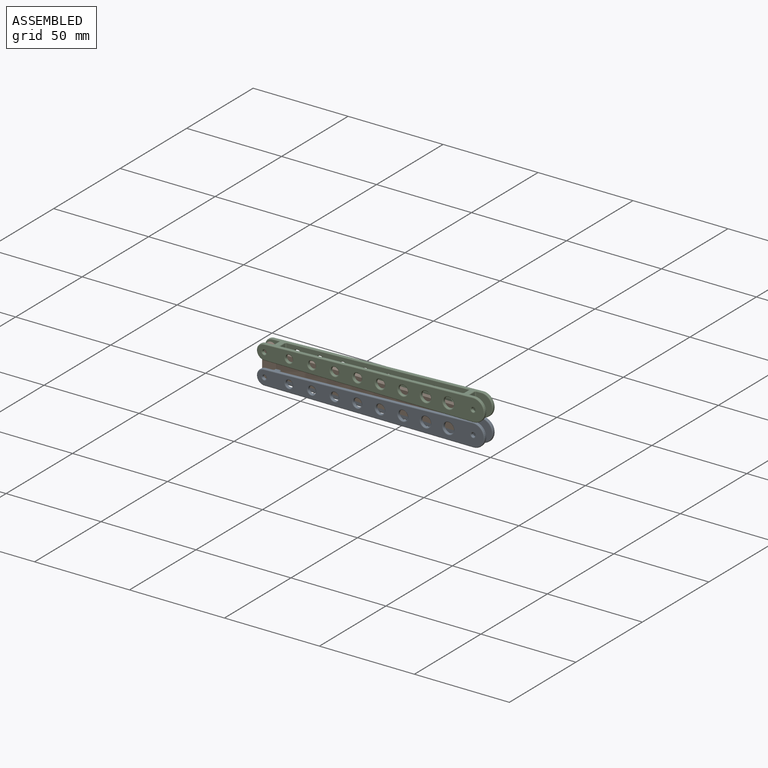
[diagram: assembled view]
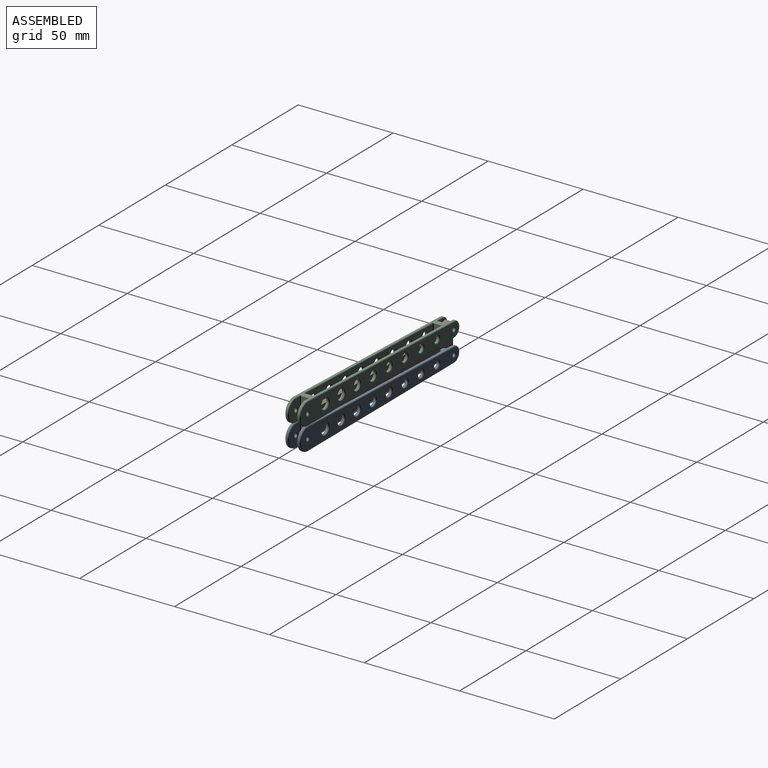
[diagram: assembled view, second angle]
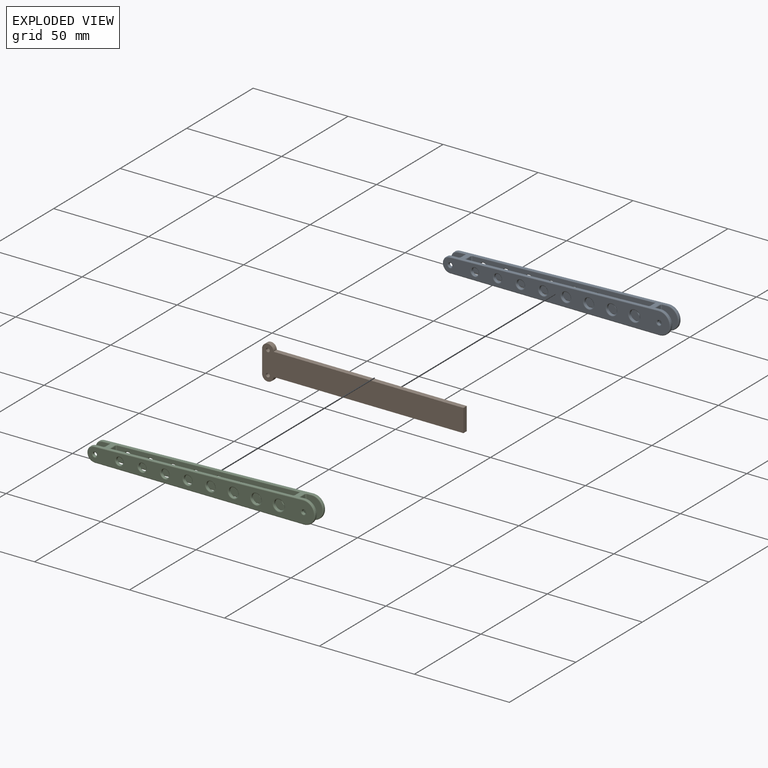
[diagram: exploded view]
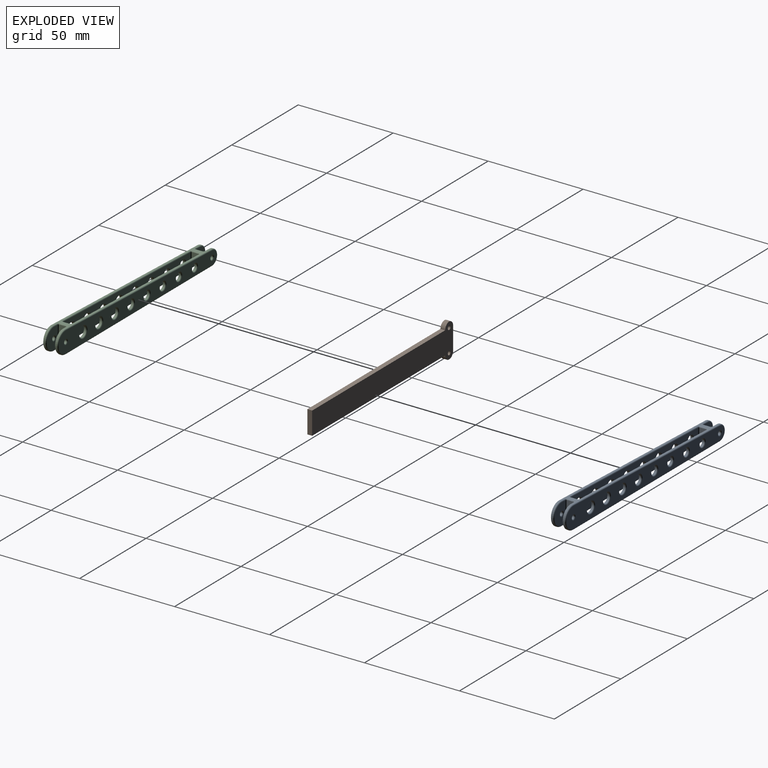
[diagram: exploded view, second angle]
ASSEMBLY  parts=3 mates=2
PART A: 131 faces, bbox 121.5x8.7x13.7 mm
  f0: plane 3.5x3.17mm, normal (1,0,-0.02), area 11.1mm2, adj f4,f5,f75,f130
  f1: plane 3.5x3.08mm, normal (-1,0,0.02), area 10.8mm2, adj f2,f3,f58,f130
  f2: cylinder r=0.5mm len=3.09mm, axis (-0.02,0,-1), area 2.4mm2, adj f1,f35,f59,f130
  f3: cylinder r=0.5mm len=3.09mm, axis (0.02,0,1), area 2.4mm2, adj f1,f36,f62,f130
  f4: cylinder r=0.5mm len=3.21mm, axis (-0.02,0,-1), area 2.5mm2, adj f0,f35,f71,f130
  f5: cylinder r=0.5mm len=3.21mm, axis (0.02,0,1), area 2.5mm2, adj f0,f36,f80,f130
  f6: cylinder r=6mm len=12mm, axis (0,1,0), area 14.3mm2, adj f7,f19,f42,f126
  f7: plane 110.33x7.35mm, normal (0,0,1), area 179.6mm2, adj f6,f8,f20,f21,f35,f36,f45,f47
  f8: cylinder r=4mm len=8mm, axis (0,1,0), area 9.3mm2, adj f7,f19,f60,f115
  f9: cylinder r=1.88mm len=3.75mm, axis (0,1,0), area 8.8mm2, adj f94,f111
  f10: cylinder r=2mm len=4mm, axis (0,1,0), area 9.4mm2, adj f95,f110
  f11: cylinder r=2.12mm len=4.25mm, axis (0,1,0), area 10mm2, adj f96,f109
  f12: cylinder r=2.25mm len=4.5mm, axis (0,1,0), area 10.6mm2, adj f97,f108
  f13: cylinder r=2.38mm len=4.75mm, axis (0,1,0), area 11.2mm2, adj f98,f107
  f14: cylinder r=2.5mm len=5mm, axis (0,1,0), area 11.8mm2, adj f99,f106
  f15: cylinder r=2.62mm len=5.25mm, axis (0,1,0), area 12.4mm2, adj f100,f105
  f16: cylinder r=2.75mm len=5.5mm, axis (0,1,0), area 13mm2, adj f101,f104
  f17: cylinder r=1mm len=2mm, axis (0,1,0), area 4.7mm2, adj f67,f103
  f18: cylinder r=1mm len=2mm, axis (0,1,0), area 4.7mm2, adj f55,f116
  f19: plane 110.61x7.7mm, normal (-0.04,0,-1), area 188.7mm2, adj f6,f8,f20,f21,f41,f43,f46,f48
  f20: cylinder r=6mm len=12mm, axis (0,1,0), area 14.3mm2, adj f7,f19,f53,f112
  f21: cylinder r=4mm len=8mm, axis (0,1,0), area 9.3mm2, adj f7,f19,f61,f129
  f22: cylinder r=1.88mm len=3.75mm, axis (0,1,0), area 8.8mm2, adj f86,f125
  f23: cylinder r=2mm len=4mm, axis (0,1,0), area 9.4mm2, adj f87,f124
  f24: cylinder r=2.12mm len=4.25mm, axis (0,1,0), area 10mm2, adj f88,f123
  f25: cylinder r=2.25mm len=4.5mm, axis (0,1,0), area 10.6mm2, adj f89,f122
  f26: cylinder r=2.38mm len=4.75mm, axis (0,1,0), area 11.2mm2, adj f90,f121
  f27: cylinder r=2.5mm len=5mm, axis (0,1,0), area 11.8mm2, adj f91,f120
  f28: cylinder r=2.62mm len=5.25mm, axis (0,1,0), area 12.4mm2, adj f92,f119
  f29: cylinder r=2.75mm len=5.5mm, axis (0,1,0), area 13mm2, adj f93,f118
  f30: cylinder r=1mm len=2mm, axis (0,1,0), area 4.7mm2, adj f68,f117
  f31: cylinder r=1mm len=2mm, axis (0,1,0), area 4.7mm2, adj f40,f102
  f32: plane 118.98x11mm, normal (0,-1,0), area 841.9mm2, adj f116,f117,f118,f119,f120,f121,f122,f123
  f33: plane 118.98x11mm, normal (0,1,0), area 841.9mm2, adj f102,f103,f104,f105,f106,f107,f108,f109
  f34: plane 10.8x3.5mm, normal (-1,0,0.02), area 37.8mm2, adj f72,f73,f81,f82
  f35: plane 107.16x11.45mm, normal (0,-1,0), area 718.7mm2, adj f2,f4,f7,f56,f60,f63,f65,f67
  f36: plane 107.33x11.62mm, normal (0,1,0), area 718.7mm2, adj f3,f5,f7,f57,f61,f64,f66,f68
  f37: plane 11x8.21mm, normal (0,-1,0), area 69mm2, adj f40,f49,f51,f53,f54
  f38: plane 10.87x3.5mm, normal (1,0,-0.02), area 38mm2, adj f44,f46,f49,f50
  f39: plane 11x8.21mm, normal (0,1,0), area 69mm2, adj f41,f42,f44,f45,f55
  f40: torus R=1.5mm, axis (0,1,0), area 5.8mm2, adj f31,f37
  f41: cylinder r=0.5mm len=2.53mm, axis (1,0,-0.04), area 2mm2, adj f19,f39,f42,f43
  f42: torus R=5.5mm, axis (0,1,0), area 14.5mm2, adj f6,f39,f41,f45
  f43: bspline ~1.17x1mm, area 0.8mm2, adj f19,f41,f44,f46
  f44: cylinder r=0.5mm len=10.91mm, axis (0.02,0,1), area 8.6mm2, adj f38,f39,f43,f47
  f45: cylinder r=0.5mm len=2.51mm, axis (-1,0,0), area 2mm2, adj f7,f39,f42,f47
  f46: cylinder r=0.5mm len=3.5mm, axis (0,-1,0), area 2.8mm2, adj f19,f38,f43,f48
  f47: bspline ~1.17x1.04mm, area 0.8mm2, adj f7,f44,f45,f50
  f48: bspline ~1.17x1.04mm, area 0.8mm2, adj f19,f46,f49,f51
  f49: cylinder r=0.5mm len=10.91mm, axis (-0.02,0,-1), area 8.6mm2, adj f37,f38,f48,f52
  f50: cylinder r=0.5mm len=3.5mm, axis (0,1,0), area 2.8mm2, adj f7,f38,f47,f52
  f51: cylinder r=0.5mm len=2.53mm, axis (-1,0,0.04), area 2mm2, adj f19,f37,f48,f53
  f52: bspline ~1.17x1mm, area 0.8mm2, adj f7,f49,f50,f54
  f53: torus R=5.5mm, axis (0,1,0), area 14.5mm2, adj f20,f37,f51,f54
  f54: cylinder r=0.5mm len=2.51mm, axis (1,0,0), area 2mm2, adj f7,f37,f52,f53
  f55: torus R=1.5mm, axis (0,1,0), area 5.8mm2, adj f18,f39
  f56: cylinder r=0.5mm len=3.58mm, axis (-1,0,0.04), area 2.8mm2, adj f19,f35,f59,f60
  f57: cylinder r=0.5mm len=3.58mm, axis (1,0,-0.04), area 2.8mm2, adj f19,f36,f61,f62
  f58: cylinder r=0.5mm len=3.5mm, axis (0,1,0), area 2.7mm2, adj f1,f19,f59,f62
  f59: bspline ~1.17x1mm, area 0.8mm2, adj f2,f19,f56,f58
  f60: torus R=3.5mm, axis (0,-1,0), area 9.3mm2, adj f8,f35,f56,f63
  f61: torus R=3.5mm, axis (0,-1,0), area 9.3mm2, adj f21,f36,f57,f64
  f62: bspline ~1.17x1.04mm, area 0.8mm2, adj f3,f19,f57,f58
  f63: cylinder r=0.5mm len=3.56mm, axis (1,0,0), area 2.8mm2, adj f7,f35,f60,f65
  f64: cylinder r=0.5mm len=3.56mm, axis (-1,0,0), area 2.8mm2, adj f7,f36,f61,f66
  f65: bspline ~1.06x0.77mm, area 0.3mm2, adj f7,f35,f63
  f66: bspline ~1.11x0.83mm, area 0.3mm2, adj f7,f36,f64
  f67: torus R=1.5mm, axis (0,-1,0), area 5.8mm2, adj f17,f35
  f68: torus R=1.5mm, axis (0,-1,0), area 5.8mm2, adj f30,f36
  f69: cylinder r=0.5mm len=95.86mm, axis (-1,0,0.04), area 75.3mm2, adj f19,f35,f70,f71
  f70: bspline ~1.17x1.17mm, area 0.8mm2, adj f19,f69,f72,f73
  f71: bspline ~1.17x1.04mm, area 0.8mm2, adj f4,f19,f69,f75
  f72: cylinder r=0.5mm len=3.5mm, axis (0,1,0), area 2.7mm2, adj f19,f34,f70,f77
  f73: cylinder r=0.5mm len=10.81mm, axis (0.02,0,1), area 8.5mm2, adj f34,f35,f70,f78
  f74: cylinder r=0.5mm len=95.91mm, axis (1,0,0), area 75.3mm2, adj f7,f35,f78,f79
  f75: cylinder r=0.5mm len=3.5mm, axis (0,-1,0), area 2.8mm2, adj f0,f19,f71,f80
  f76: cylinder r=0.5mm len=95.86mm, axis (1,0,-0.04), area 75.3mm2, adj f19,f36,f77,f80
  f77: bspline ~1.28x1mm, area 0.8mm2, adj f19,f72,f76,f81
  f78: bspline ~1.17x1mm, area 0.8mm2, adj f7,f73,f74,f82
  f79: bspline ~1.11x0.83mm, area 0.3mm2, adj f7,f35,f74
  f80: bspline ~1.02x1mm, area 0.8mm2, adj f5,f19,f75,f76
  f81: cylinder r=0.5mm len=10.81mm, axis (-0.02,0,-1), area 8.5mm2, adj f34,f36,f77,f83
  f82: cylinder r=0.5mm len=3.5mm, axis (0,-1,0), area 2.7mm2, adj f7,f34,f78,f83
  f83: bspline ~1.17x1.17mm, area 0.8mm2, adj f7,f81,f82,f85
  f84: bspline ~1.06x0.77mm, area 0.3mm2, adj f7,f36,f85
  f85: cylinder r=0.5mm len=95.91mm, axis (-1,0,0), area 75.3mm2, adj f7,f36,f83,f84
  f86: torus R=2.38mm, axis (0,-1,0), area 10.1mm2, adj f22,f36
  f87: torus R=2.5mm, axis (0,-1,0), area 10.8mm2, adj f23,f36
  f88: torus R=2.62mm, axis (0,-1,0), area 11.4mm2, adj f24,f36
  f89: torus R=2.75mm, axis (0,-1,0), area 12mm2, adj f25,f36
  f90: torus R=2.88mm, axis (0,-1,0), area 12.6mm2, adj f26,f36
  f91: torus R=3mm, axis (0,-1,0), area 13.2mm2, adj f27,f36
  f92: torus R=3.12mm, axis (0,-1,0), area 13.9mm2, adj f28,f36
  f93: torus R=3.25mm, axis (0,-1,0), area 14.5mm2, adj f29,f36
  f94: torus R=2.38mm, axis (0,-1,0), area 10.1mm2, adj f9,f35
  f95: torus R=2.5mm, axis (0,-1,0), area 10.8mm2, adj f10,f35
  f96: torus R=2.62mm, axis (0,-1,0), area 11.4mm2, adj f11,f35
  f97: torus R=2.75mm, axis (0,-1,0), area 12mm2, adj f12,f35
  f98: torus R=2.88mm, axis (0,-1,0), area 12.6mm2, adj f13,f35
  f99: torus R=3mm, axis (0,-1,0), area 13.2mm2, adj f14,f35
  f100: torus R=3.12mm, axis (0,-1,0), area 13.9mm2, adj f15,f35
  f101: torus R=3.25mm, axis (0,-1,0), area 14.5mm2, adj f16,f35
  f102: torus R=1.5mm, axis (0,-1,0), area 5.8mm2, adj f31,f33
  f103: torus R=1.5mm, axis (0,-1,0), area 5.8mm2, adj f17,f33
  f104: torus R=3.25mm, axis (0,-1,0), area 14.5mm2, adj f16,f33
  f105: torus R=3.12mm, axis (0,-1,0), area 13.9mm2, adj f15,f33
  f106: torus R=3mm, axis (0,-1,0), area 13.2mm2, adj f14,f33
  f107: torus R=2.88mm, axis (0,-1,0), area 12.6mm2, adj f13,f33
  f108: torus R=2.75mm, axis (0,-1,0), area 12mm2, adj f12,f33
  f109: torus R=2.62mm, axis (0,-1,0), area 11.4mm2, adj f11,f33
  f110: torus R=2.5mm, axis (0,-1,0), area 10.8mm2, adj f10,f33
  f111: torus R=2.38mm, axis (0,-1,0), area 10.1mm2, adj f9,f33
  f112: torus R=5.5mm, axis (0,-1,0), area 14.5mm2, adj f20,f33,f113,f114
  f113: cylinder r=0.5mm len=109.98mm, axis (-1,0,0), area 86.4mm2, adj f7,f33,f112,f115
  f114: cylinder r=0.5mm len=109.93mm, axis (1,0,-0.04), area 86.4mm2, adj f19,f33,f112,f115
  f115: torus R=3.5mm, axis (0,-1,0), area 9.3mm2, adj f8,f33,f113,f114
  f116: torus R=1.5mm, axis (0,-1,0), area 5.8mm2, adj f18,f32
  f117: torus R=1.5mm, axis (0,-1,0), area 5.8mm2, adj f30,f32
  f118: torus R=3.25mm, axis (0,-1,0), area 14.5mm2, adj f29,f32
  f119: torus R=3.12mm, axis (0,-1,0), area 13.9mm2, adj f28,f32
  f120: torus R=3mm, axis (0,-1,0), area 13.2mm2, adj f27,f32
  f121: torus R=2.88mm, axis (0,-1,0), area 12.6mm2, adj f26,f32
  f122: torus R=2.75mm, axis (0,-1,0), area 12mm2, adj f25,f32
  f123: torus R=2.62mm, axis (0,-1,0), area 11.4mm2, adj f24,f32
  f124: torus R=2.5mm, axis (0,-1,0), area 10.8mm2, adj f23,f32
  f125: torus R=2.38mm, axis (0,-1,0), area 10.1mm2, adj f22,f32
  f126: torus R=5.5mm, axis (0,-1,0), area 14.5mm2, adj f6,f32,f127,f128
  f127: cylinder r=0.5mm len=109.98mm, axis (1,0,0), area 86.4mm2, adj f7,f32,f126,f129
  f128: cylinder r=0.5mm len=109.93mm, axis (-1,0,0.04), area 86.4mm2, adj f19,f32,f126,f129
  f129: torus R=3.5mm, axis (0,-1,0), area 9.3mm2, adj f21,f32,f127,f128
  f130: plane 4.5x4mm, normal (0,0,1), area 13.7mm2, adj f0,f1,f2,f3,f4,f5,f35,f36
PART B: 10 faces, bbox 106x2.5x18 mm
  f0: cylinder r=3mm len=6mm, axis (0,1,0), area 23.6mm2, adj f1,f5,f8,f9
  f1: plane 100x2.5mm, normal (0,0,-1), area 250mm2, adj f0,f2,f8,f9
  f2: plane 12x2.5mm, normal (1,0,0), area 30mm2, adj f1,f3,f8,f9
  f3: plane 100x2.5mm, normal (0,0,1), area 250mm2, adj f2,f4,f8,f9
  f4: cylinder r=3mm len=6mm, axis (0,1,0), area 23.6mm2, adj f3,f5,f8,f9
  f5: plane 12x2.5mm, normal (-1,0,0), area 30mm2, adj f0,f4,f8,f9
  f6: cylinder r=1mm len=2.5mm, axis (0,1,0), area 15.7mm2, adj f8,f9
  f7: cylinder r=1mm len=2.5mm, axis (0,1,0), area 15.7mm2, adj f8,f9
  f8: plane 106x18mm, normal (0,-1,0), area 1294mm2, adj f0,f1,f2,f3,f4,f5,f6,f7
  f9: plane 106x18mm, normal (0,1,0), area 1294mm2, adj f0,f1,f2,f3,f4,f5,f6,f7
PART C: 131 faces, bbox 121.5x8.7x13.7 mm
  f0: plane 3.5x3.17mm, normal (1,0,0.02), area 11.1mm2, adj f4,f5,f75,f130
  f1: plane 3.5x3.08mm, normal (-1,0,-0.02), area 10.8mm2, adj f2,f3,f58,f130
  f2: cylinder r=0.5mm len=3.09mm, axis (-0.02,0,1), area 2.4mm2, adj f1,f35,f59,f130
  f3: cylinder r=0.5mm len=3.09mm, axis (0.02,0,-1), area 2.4mm2, adj f1,f36,f62,f130
  f4: cylinder r=0.5mm len=3.2mm, axis (-0.02,0,1), area 2.5mm2, adj f0,f35,f71,f130
  f5: cylinder r=0.5mm len=3.2mm, axis (0.02,0,-1), area 2.5mm2, adj f0,f36,f80,f130
  f6: cylinder r=6mm len=12mm, axis (0,1,0), area 14.3mm2, adj f7,f19,f42,f126
  f7: plane 110.68x7.7mm, normal (0,0,-1), area 179.6mm2, adj f6,f8,f20,f21,f35,f36,f45,f47
  f8: cylinder r=4mm len=8mm, axis (0,1,0), area 9.3mm2, adj f7,f19,f60,f115
  f9: cylinder r=1.88mm len=3.75mm, axis (0,1,0), area 8.8mm2, adj f94,f111
  f10: cylinder r=2mm len=4mm, axis (0,1,0), area 9.4mm2, adj f95,f110
  f11: cylinder r=2.12mm len=4.25mm, axis (0,1,0), area 10mm2, adj f96,f109
  f12: cylinder r=2.25mm len=4.5mm, axis (0,1,0), area 10.6mm2, adj f97,f108
  f13: cylinder r=2.38mm len=4.75mm, axis (0,1,0), area 11.2mm2, adj f98,f107
  f14: cylinder r=2.5mm len=5mm, axis (0,1,0), area 11.8mm2, adj f99,f106
  f15: cylinder r=2.62mm len=5.25mm, axis (0,1,0), area 12.4mm2, adj f100,f105
  f16: cylinder r=2.75mm len=5.5mm, axis (0,1,0), area 13mm2, adj f101,f104
  f17: cylinder r=1mm len=2mm, axis (0,1,0), area 4.7mm2, adj f67,f103
  f18: cylinder r=1mm len=2mm, axis (0,1,0), area 4.7mm2, adj f55,f116
  f19: plane 110.61x7.7mm, normal (-0.04,0,1), area 188.7mm2, adj f6,f8,f20,f21,f41,f43,f46,f48
  f20: cylinder r=6mm len=12mm, axis (0,1,0), area 14.3mm2, adj f7,f19,f53,f112
  f21: cylinder r=4mm len=8mm, axis (0,1,0), area 9.3mm2, adj f7,f19,f61,f129
  f22: cylinder r=1.88mm len=3.75mm, axis (0,1,0), area 8.8mm2, adj f86,f125
  f23: cylinder r=2mm len=4mm, axis (0,1,0), area 9.4mm2, adj f87,f124
  f24: cylinder r=2.12mm len=4.25mm, axis (0,1,0), area 10mm2, adj f88,f123
  f25: cylinder r=2.25mm len=4.5mm, axis (0,1,0), area 10.6mm2, adj f89,f122
  f26: cylinder r=2.38mm len=4.75mm, axis (0,1,0), area 11.2mm2, adj f90,f121
  f27: cylinder r=2.5mm len=5mm, axis (0,1,0), area 11.8mm2, adj f91,f120
  f28: cylinder r=2.62mm len=5.25mm, axis (0,1,0), area 12.4mm2, adj f92,f119
  f29: cylinder r=2.75mm len=5.5mm, axis (0,1,0), area 13mm2, adj f93,f118
  f30: cylinder r=1mm len=2mm, axis (0,1,0), area 4.7mm2, adj f68,f117
  f31: cylinder r=1mm len=2mm, axis (0,1,0), area 4.7mm2, adj f40,f102
  f32: plane 118.98x11mm, normal (0,-1,0), area 841.9mm2, adj f116,f117,f118,f119,f120,f121,f122,f123
  f33: plane 118.98x11mm, normal (0,1,0), area 841.9mm2, adj f102,f103,f104,f105,f106,f107,f108,f109
  f34: plane 10.8x3.5mm, normal (-1,0,-0.02), area 37.8mm2, adj f72,f73,f81,f82
  f35: plane 107.19x11.48mm, normal (0,-1,0), area 718.8mm2, adj f2,f4,f7,f56,f60,f63,f65,f67
  f36: plane 107.19x11.48mm, normal (0,1,0), area 718.8mm2, adj f3,f5,f7,f57,f61,f64,f66,f68
  f37: plane 11x8.21mm, normal (0,-1,0), area 69mm2, adj f40,f49,f51,f53,f54
  f38: plane 10.87x3.5mm, normal (1,0,0.02), area 38mm2, adj f44,f46,f49,f50
  f39: plane 11x8.21mm, normal (0,1,0), area 69mm2, adj f41,f42,f44,f45,f55
  f40: torus R=1.5mm, axis (0,1,0), area 5.8mm2, adj f31,f37
  f41: cylinder r=0.5mm len=2.53mm, axis (1,0,0.04), area 2mm2, adj f19,f39,f42,f43
  f42: torus R=5.5mm, axis (0,1,0), area 14.5mm2, adj f6,f39,f41,f45
  f43: bspline ~1.17x1mm, area 0.8mm2, adj f19,f41,f44,f46
  f44: cylinder r=0.5mm len=10.91mm, axis (0.02,0,-1), area 8.6mm2, adj f38,f39,f43,f47
  f45: cylinder r=0.5mm len=2.51mm, axis (-1,0,0), area 2mm2, adj f7,f39,f42,f47
  f46: cylinder r=0.5mm len=3.5mm, axis (0,-1,0), area 2.8mm2, adj f19,f38,f43,f48
  f47: bspline ~1.17x1.04mm, area 0.8mm2, adj f7,f44,f45,f50
  f48: bspline ~1.17x1.04mm, area 0.8mm2, adj f19,f46,f49,f51
  f49: cylinder r=0.5mm len=10.91mm, axis (-0.02,0,1), area 8.6mm2, adj f37,f38,f48,f52
  f50: cylinder r=0.5mm len=3.5mm, axis (0,1,0), area 2.8mm2, adj f7,f38,f47,f52
  f51: cylinder r=0.5mm len=2.53mm, axis (-1,0,-0.04), area 2mm2, adj f19,f37,f48,f53
  f52: bspline ~1.01x1mm, area 0.8mm2, adj f7,f49,f50,f54
  f53: torus R=5.5mm, axis (0,1,0), area 14.5mm2, adj f20,f37,f51,f54
  f54: cylinder r=0.5mm len=2.51mm, axis (1,0,0), area 2mm2, adj f7,f37,f52,f53
  f55: torus R=1.5mm, axis (0,1,0), area 5.8mm2, adj f18,f39
  f56: cylinder r=0.5mm len=3.58mm, axis (-1,0,-0.04), area 2.8mm2, adj f19,f35,f59,f60
  f57: cylinder r=0.5mm len=3.58mm, axis (1,0,0.04), area 2.8mm2, adj f19,f36,f61,f62
  f58: cylinder r=0.5mm len=3.5mm, axis (0,1,0), area 2.7mm2, adj f1,f19,f59,f62
  f59: bspline ~1.17x1mm, area 0.8mm2, adj f2,f19,f56,f58
  f60: torus R=3.5mm, axis (0,-1,0), area 9.3mm2, adj f8,f35,f56,f63
  f61: torus R=3.5mm, axis (0,-1,0), area 9.3mm2, adj f21,f36,f57,f64
  f62: bspline ~1.17x1.04mm, area 0.8mm2, adj f3,f19,f57,f58
  f63: cylinder r=0.5mm len=3.56mm, axis (1,0,0), area 2.8mm2, adj f7,f35,f60,f65
  f64: cylinder r=0.5mm len=3.56mm, axis (-1,0,0), area 2.8mm2, adj f7,f36,f61,f66
  f65: bspline ~1.06x0.77mm, area 0.3mm2, adj f7,f35,f63
  f66: bspline ~1.11x0.83mm, area 0.3mm2, adj f7,f36,f64
  f67: torus R=1.5mm, axis (0,-1,0), area 5.8mm2, adj f17,f35
  f68: torus R=1.5mm, axis (0,-1,0), area 5.8mm2, adj f30,f36
  f69: cylinder r=0.5mm len=95.86mm, axis (-1,0,-0.04), area 75.3mm2, adj f19,f35,f70,f71
  f70: bspline ~1.17x1.17mm, area 0.8mm2, adj f19,f69,f72,f73
  f71: bspline ~1.17x1.04mm, area 0.8mm2, adj f4,f19,f69,f75
  f72: cylinder r=0.5mm len=3.5mm, axis (0,1,0), area 2.7mm2, adj f19,f34,f70,f77
  f73: cylinder r=0.5mm len=10.81mm, axis (0.02,0,-1), area 8.5mm2, adj f34,f35,f70,f78
  f74: cylinder r=0.5mm len=95.91mm, axis (1,0,0), area 75.3mm2, adj f7,f35,f78,f79
  f75: cylinder r=0.5mm len=3.5mm, axis (0,-1,0), area 2.8mm2, adj f0,f19,f71,f80
  f76: cylinder r=0.5mm len=95.86mm, axis (1,0,0.04), area 75.3mm2, adj f19,f36,f77,f80
  f77: bspline ~1x1mm, area 0.8mm2, adj f19,f72,f76,f81
  f78: bspline ~1x1mm, area 0.8mm2, adj f7,f73,f74,f82
  f79: bspline ~1.11x0.83mm, area 0.3mm2, adj f7,f35,f74
  f80: bspline ~1.02x1mm, area 0.8mm2, adj f5,f19,f75,f76
  f81: cylinder r=0.5mm len=10.81mm, axis (-0.02,0,1), area 8.5mm2, adj f34,f36,f77,f83
  f82: cylinder r=0.5mm len=3.5mm, axis (0,-1,0), area 2.7mm2, adj f7,f34,f78,f83
  f83: bspline ~1.17x1.17mm, area 0.8mm2, adj f7,f81,f82,f85
  f84: bspline ~1.06x0.77mm, area 0.3mm2, adj f7,f36,f85
  f85: cylinder r=0.5mm len=95.91mm, axis (-1,0,0), area 75.3mm2, adj f7,f36,f83,f84
  f86: torus R=2.38mm, axis (0,-1,0), area 10.1mm2, adj f22,f36
  f87: torus R=2.5mm, axis (0,-1,0), area 10.8mm2, adj f23,f36
  f88: torus R=2.62mm, axis (0,-1,0), area 11.4mm2, adj f24,f36
  f89: torus R=2.75mm, axis (0,-1,0), area 12mm2, adj f25,f36
  f90: torus R=2.88mm, axis (0,-1,0), area 12.6mm2, adj f26,f36
  f91: torus R=3mm, axis (0,-1,0), area 13.2mm2, adj f27,f36
  f92: torus R=3.12mm, axis (0,-1,0), area 13.9mm2, adj f28,f36
  f93: torus R=3.25mm, axis (0,-1,0), area 14.5mm2, adj f29,f36
  f94: torus R=2.38mm, axis (0,-1,0), area 10.1mm2, adj f9,f35
  f95: torus R=2.5mm, axis (0,-1,0), area 10.8mm2, adj f10,f35
  f96: torus R=2.62mm, axis (0,-1,0), area 11.4mm2, adj f11,f35
  f97: torus R=2.75mm, axis (0,-1,0), area 12mm2, adj f12,f35
  f98: torus R=2.88mm, axis (0,-1,0), area 12.6mm2, adj f13,f35
  f99: torus R=3mm, axis (0,-1,0), area 13.2mm2, adj f14,f35
  f100: torus R=3.12mm, axis (0,-1,0), area 13.9mm2, adj f15,f35
  f101: torus R=3.25mm, axis (0,-1,0), area 14.5mm2, adj f16,f35
  f102: torus R=1.5mm, axis (0,-1,0), area 5.8mm2, adj f31,f33
  f103: torus R=1.5mm, axis (0,-1,0), area 5.8mm2, adj f17,f33
  f104: torus R=3.25mm, axis (0,-1,0), area 14.5mm2, adj f16,f33
  f105: torus R=3.12mm, axis (0,-1,0), area 13.9mm2, adj f15,f33
  f106: torus R=3mm, axis (0,-1,0), area 13.2mm2, adj f14,f33
  f107: torus R=2.88mm, axis (0,-1,0), area 12.6mm2, adj f13,f33
  f108: torus R=2.75mm, axis (0,-1,0), area 12mm2, adj f12,f33
  f109: torus R=2.62mm, axis (0,-1,0), area 11.4mm2, adj f11,f33
  f110: torus R=2.5mm, axis (0,-1,0), area 10.8mm2, adj f10,f33
  f111: torus R=2.38mm, axis (0,-1,0), area 10.1mm2, adj f9,f33
  f112: torus R=5.5mm, axis (0,-1,0), area 14.5mm2, adj f20,f33,f113,f114
  f113: cylinder r=0.5mm len=109.98mm, axis (-1,0,0), area 86.4mm2, adj f7,f33,f112,f115
  f114: cylinder r=0.5mm len=109.93mm, axis (1,0,0.04), area 86.4mm2, adj f19,f33,f112,f115
  f115: torus R=3.5mm, axis (0,-1,0), area 9.3mm2, adj f8,f33,f113,f114
  f116: torus R=1.5mm, axis (0,-1,0), area 5.8mm2, adj f18,f32
  f117: torus R=1.5mm, axis (0,-1,0), area 5.8mm2, adj f30,f32
  f118: torus R=3.25mm, axis (0,-1,0), area 14.5mm2, adj f29,f32
  f119: torus R=3.12mm, axis (0,-1,0), area 13.9mm2, adj f28,f32
  f120: torus R=3mm, axis (0,-1,0), area 13.2mm2, adj f27,f32
  f121: torus R=2.88mm, axis (0,-1,0), area 12.6mm2, adj f26,f32
  f122: torus R=2.75mm, axis (0,-1,0), area 12mm2, adj f25,f32
  f123: torus R=2.62mm, axis (0,-1,0), area 11.4mm2, adj f24,f32
  f124: torus R=2.5mm, axis (0,-1,0), area 10.8mm2, adj f23,f32
  f125: torus R=2.38mm, axis (0,-1,0), area 10.1mm2, adj f22,f32
  f126: torus R=5.5mm, axis (0,-1,0), area 14.5mm2, adj f6,f32,f127,f128
  f127: cylinder r=0.5mm len=109.98mm, axis (1,0,0), area 86.4mm2, adj f7,f32,f126,f129
  f128: cylinder r=0.5mm len=109.93mm, axis (-1,0,-0.04), area 86.4mm2, adj f19,f32,f126,f129
  f129: torus R=3.5mm, axis (0,-1,0), area 9.3mm2, adj f21,f32,f127,f128
  f130: plane 4.5x4mm, normal (0,0,-1), area 13.7mm2, adj f0,f1,f2,f3,f4,f5,f35,f36
PLACE A rot(axis=(1,0,0),180deg) t=(30.44,0.61,-7.69)mm
PLACE B rot(axis=(0,1,0.01),0deg) t=(30.44,8.61,-7.69)mm
PLACE C t=(30.44,8.61,-7.69)mm fixed
MATE revolute A.f17 <-> B.f0  axis (0,1,0) through (30.44,8.61,-7.69)mm
MATE revolute C.f8 <-> B.f4  axis (0,-1,0) through (30.44,3.36,4.31)mm
